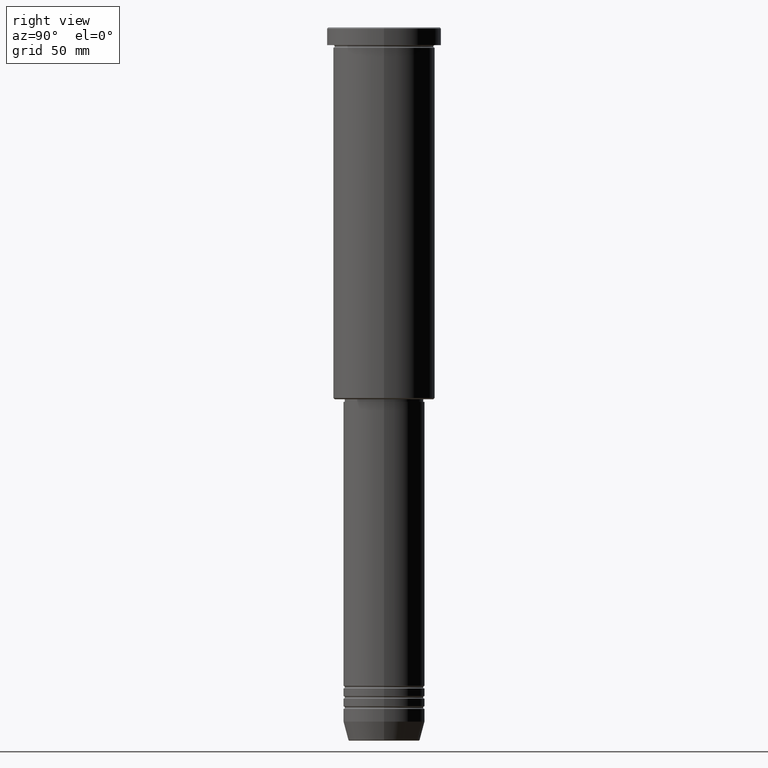
[diagram: clean part render]
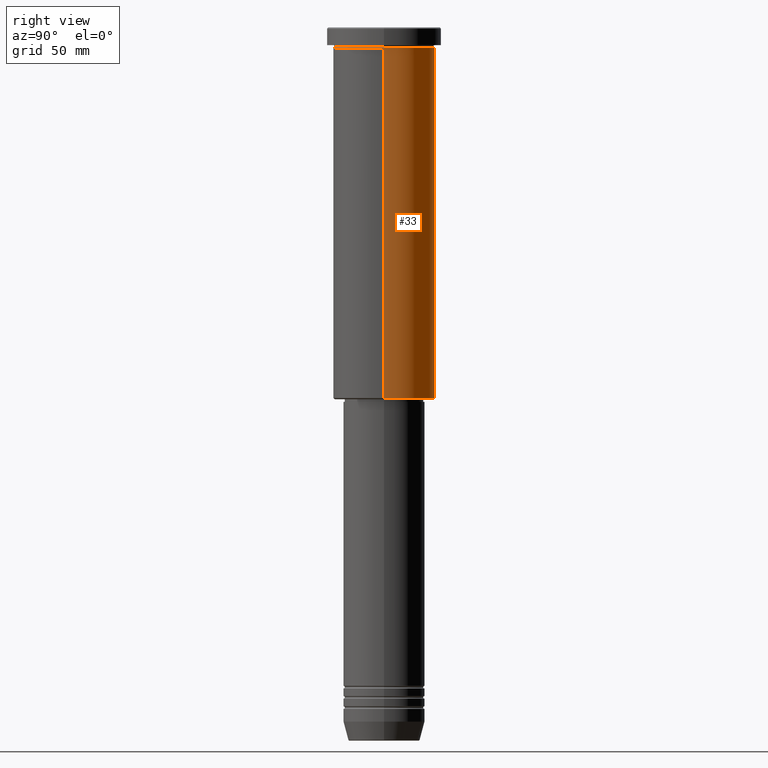
[diagram: same view with one face highlighted and labeled with its STEP entity id]
A machine part, right view. The second image highlights one B-rep face of the part: STEP entity #33.
In plain terms, the highlighted cylindrical surface (partial cylindrical patch) has radius 20 mm, axis along (-0, -0, 1).
Its self-contained STEP definition (entity closure, byte-faithful):
#9 = VERTEX_POINT ( 'NONE', #801 ) ;
#28 = ORIENTED_EDGE ( 'NONE', *, *, #788, .T. ) ;
#33 = ADVANCED_FACE ( 'NONE', ( #352 ), #993, .T. ) ;
#54 = EDGE_CURVE ( 'NONE', #1063, #9, #631, .T. ) ;
#61 = CARTESIAN_POINT ( 'NONE',  ( 20.00000000000000355, 0.000000000000000000, -145.4999999999998863 ) ) ;
#74 = DIRECTION ( 'NONE',  ( 1.000000000000000000, 0.000000000000000000, 0.000000000000000000 ) ) ;
#94 = CIRCLE ( 'NONE', #866, 20.00000000000000355 ) ;
#176 = CARTESIAN_POINT ( 'NONE',  ( -20.00000000000000355, 2.449293598294706907E-15, 0.000000000000000000 ) ) ;
#189 = DIRECTION ( 'NONE',  ( -0.000000000000000000, -0.000000000000000000, 1.000000000000000000 ) ) ;
#192 = CARTESIAN_POINT ( 'NONE',  ( 0.000000000000000000, 0.000000000000000000, -7.999999999999994671 ) ) ;
#202 = EDGE_LOOP ( 'NONE', ( #28, #697, #220, #968 ) ) ;
#220 = ORIENTED_EDGE ( 'NONE', *, *, #942, .F. ) ;
#233 = AXIS2_PLACEMENT_3D ( 'NONE', #276, #189, #626 ) ;
#276 = CARTESIAN_POINT ( 'NONE',  ( 0.000000000000000000, 0.000000000000000000, 0.000000000000000000 ) ) ;
#286 = DIRECTION ( 'NONE',  ( -0.000000000000000000, -0.000000000000000000, 1.000000000000000000 ) ) ;
#308 = VECTOR ( 'NONE', #286, 1000.000000000000000 ) ;
#352 = FACE_OUTER_BOUND ( 'NONE', #202, .T. ) ;
#531 = DIRECTION ( 'NONE',  ( -1.000000000000000000, 0.000000000000000000, 0.000000000000000000 ) ) ;
#584 = CARTESIAN_POINT ( 'NONE',  ( 20.00000000000000355, 0.000000000000000000, 0.000000000000000000 ) ) ;
#626 = DIRECTION ( 'NONE',  ( 1.000000000000000000, 0.000000000000000000, 0.000000000000000000 ) ) ;
#627 = EDGE_CURVE ( 'NONE', #802, #1124, #945, .T. ) ;
#629 = DIRECTION ( 'NONE',  ( -0.000000000000000000, -0.000000000000000000, 1.000000000000000000 ) ) ;
#631 = LINE ( 'NONE', #176, #920 ) ;
#656 = AXIS2_PLACEMENT_3D ( 'NONE', #192, #629, #74 ) ;
#697 = ORIENTED_EDGE ( 'NONE', *, *, #54, .T. ) ;
#713 = DIRECTION ( 'NONE',  ( -0.000000000000000000, -0.000000000000000000, 1.000000000000000000 ) ) ;
#788 = EDGE_CURVE ( 'NONE', #802, #1063, #94, .T. ) ;
#801 = CARTESIAN_POINT ( 'NONE',  ( -20.00000000000000000, 2.449293598294706513E-15, -7.999999999999994671 ) ) ;
#802 = VERTEX_POINT ( 'NONE', #61 ) ;
#807 = CIRCLE ( 'NONE', #656, 20.00000000000000000 ) ;
#866 = AXIS2_PLACEMENT_3D ( 'NONE', #958, #713, #531 ) ;
#892 = DIRECTION ( 'NONE',  ( -0.000000000000000000, -0.000000000000000000, 1.000000000000000000 ) ) ;
#920 = VECTOR ( 'NONE', #892, 1000.000000000000000 ) ;
#942 = EDGE_CURVE ( 'NONE', #1124, #9, #807, .T. ) ;
#945 = LINE ( 'NONE', #584, #308 ) ;
#958 = CARTESIAN_POINT ( 'NONE',  ( 0.000000000000000000, 0.000000000000000000, -145.4999999999998863 ) ) ;
#968 = ORIENTED_EDGE ( 'NONE', *, *, #627, .F. ) ;
#993 = CYLINDRICAL_SURFACE ( 'NONE', #233, 20.00000000000000355 ) ;
#1063 = VERTEX_POINT ( 'NONE', #1102 ) ;
#1102 = CARTESIAN_POINT ( 'NONE',  ( -20.00000000000000355, 2.449293598294706907E-15, -145.4999999999998863 ) ) ;
#1112 = CARTESIAN_POINT ( 'NONE',  ( 20.00000000000000000, 0.000000000000000000, -7.999999999999994671 ) ) ;
#1124 = VERTEX_POINT ( 'NONE', #1112 ) ;